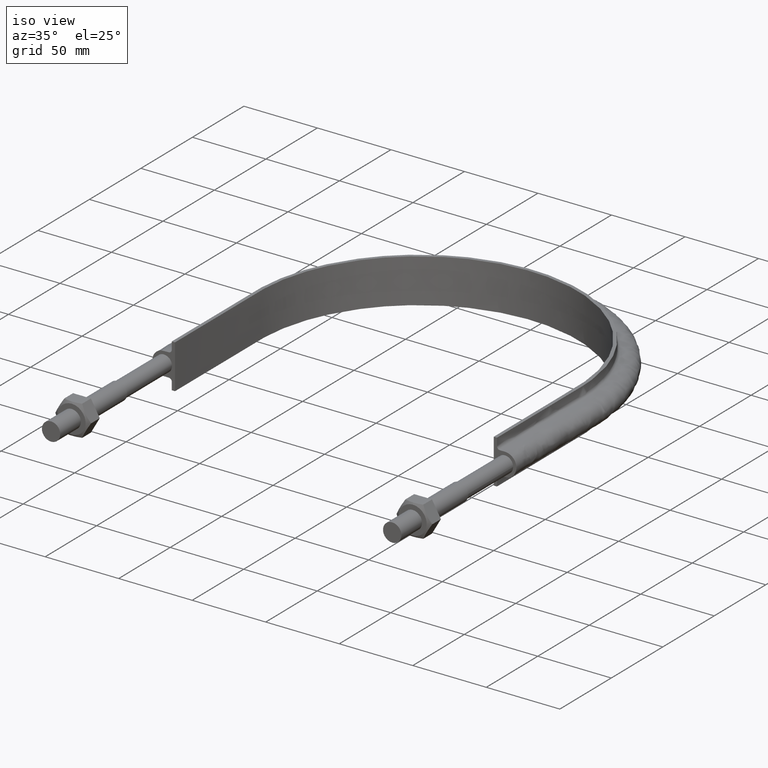
[diagram: clean part render]
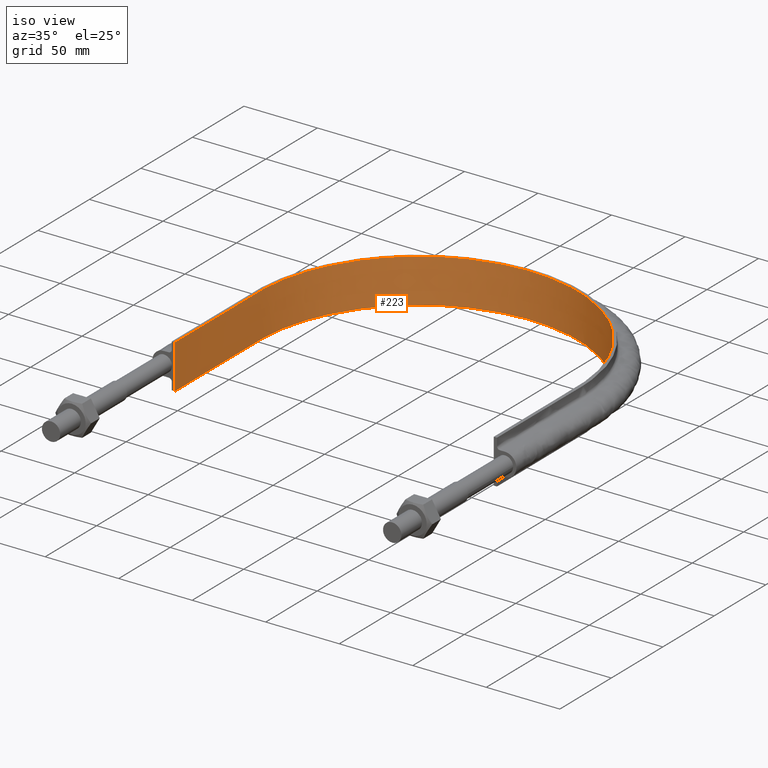
[diagram: same view with one face highlighted and labeled with its STEP entity id]
A machine part, iso view. The second image highlights one B-rep face of the part: STEP entity #223.
In plain terms, the highlighted face is a SurfaceOfExtrusion surface.
Its self-contained STEP definition (entity closure, byte-faithful):
#223 = ADVANCED_FACE( '', ( #270 ), #271, .T. );
#270 = FACE_OUTER_BOUND( '', #898, .T. );
#271 = SURFACE_OF_LINEAR_EXTRUSION( '', #899, #900 );
#898 = EDGE_LOOP( '', ( #1390, #1391, #1392, #1393 ) );
#899 = B_SPLINE_CURVE_WITH_KNOTS( '', 3, ( #1394, #1395, #1396, #1397, #1398, #1399, #1400, #1401, #1402, #1403, #1404, #1405, #1406, #1407, #1408, #1409, #1410 ), .UNSPECIFIED., .F., .F., ( 4, 3, 1, 1, 1, 1, 1, 1, 1, 3, 4 ), ( -10.0000000000000, -9.00000000000000, -8.00000000000000, -7.00000000000000, -6.00000000000000, -5.00000000000000, -4.00000000000000, -3.00000000000000, -2.00000000000000, -1.00000000000000, 0.000000000000000 ), .UNSPECIFIED. );
#900 = VECTOR( '', #1411, 1000.00000000000 );
#1390 = ORIENTED_EDGE( '', *, *, #1665, .F. );
#1391 = ORIENTED_EDGE( '', *, *, #1653, .F. );
#1392 = ORIENTED_EDGE( '', *, *, #1666, .T. );
#1393 = ORIENTED_EDGE( '', *, *, #1661, .T. );
#1394 = CARTESIAN_POINT( '', ( -108.400000000000, 109.500000000000, -338.759662970140 ) );
#1395 = CARTESIAN_POINT( '', ( -108.400000000000, 136.866666666667, -338.759662970140 ) );
#1396 = CARTESIAN_POINT( '', ( -108.400000000000, 164.233333333333, -338.759662970140 ) );
#1397 = CARTESIAN_POINT( '', ( -108.400000000000, 191.600000000000, -338.759662970140 ) );
#1398 = CARTESIAN_POINT( '', ( -108.400000000000, 205.774498518656, -338.759662970140 ) );
#1399 = CARTESIAN_POINT( '', ( -102.755814879494, 234.168943035043, -338.759662970140 ) );
#1400 = CARTESIAN_POINT( '', ( -78.6458958671129, 270.244256009620, -338.759662970140 ) );
#1401 = CARTESIAN_POINT( '', ( -42.5628521357854, 294.356283410206, -338.759662970140 ) );
#1402 = CARTESIAN_POINT( '', ( 7.87171205978664E-014, 302.821858294897, -338.759662970140 ) );
#1403 = CARTESIAN_POINT( '', ( 42.5628521357854, 294.356283410206, -338.759662970140 ) );
#1404 = CARTESIAN_POINT( '', ( 78.6458958671129, 270.244256009621, -338.759662970140 ) );
#1405 = CARTESIAN_POINT( '', ( 102.755814879494, 234.168943035043, -338.759662970140 ) );
#1406 = CARTESIAN_POINT( '', ( 108.400000000000, 205.774498518656, -338.759662970140 ) );
#1407 = CARTESIAN_POINT( '', ( 108.400000000000, 191.600000000000, -338.759662970140 ) );
#1408 = CARTESIAN_POINT( '', ( 108.400000000000, 164.233333333333, -338.759662970140 ) );
#1409 = CARTESIAN_POINT( '', ( 108.400000000000, 136.866666666667, -338.759662970140 ) );
#1410 = CARTESIAN_POINT( '', ( 108.400000000000, 109.500000000000, -338.759662970140 ) );
#1411 = DIRECTION( '', ( 0.000000000000000, 0.000000000000000, 1.00000000000000 ) );
#1653 = EDGE_CURVE( '', #1735, #1736, #1737, .T. );
#1661 = EDGE_CURVE( '', #1750, #1751, #1752, .T. );
#1665 = EDGE_CURVE( '', #1736, #1751, #1757, .T. );
#1666 = EDGE_CURVE( '', #1735, #1750, #1758, .T. );
#1735 = VERTEX_POINT( '', #1883 );
#1736 = VERTEX_POINT( '', #1884 );
#1737 = LINE( '', #1885, #1886 );
#1750 = VERTEX_POINT( '', #2003 );
#1751 = VERTEX_POINT( '', #2004 );
#1752 = LINE( '', #2005, #2006 );
#1757 = B_SPLINE_CURVE_WITH_KNOTS( '', 3, ( #2023, #2024, #2025, #2026, #2027, #2028, #2029, #2030, #2031, #2032, #2033, #2034, #2035, #2036, #2037, #2038, #2039 ), .UNSPECIFIED., .F., .F., ( 4, 3, 1, 1, 1, 1, 1, 1, 1, 3, 4 ), ( -10.0000000000000, -9.00000000000000, -8.00000000000000, -7.00000000000000, -6.00000000000000, -5.00000000000000, -4.00000000000000, -3.00000000000000, -2.00000000000000, -1.00000000000000, 0.000000000000000 ), .UNSPECIFIED. );
#1758 = B_SPLINE_CURVE_WITH_KNOTS( '', 3, ( #2040, #2041, #2042, #2043, #2044, #2045, #2046, #2047, #2048, #2049, #2050, #2051, #2052, #2053, #2054, #2055, #2056 ), .UNSPECIFIED., .F., .F., ( 4, 3, 1, 1, 1, 1, 1, 1, 1, 3, 4 ), ( -10.0000000000000, -9.00000000000000, -8.00000000000000, -7.00000000000000, -6.00000000000000, -5.00000000000000, -4.00000000000000, -3.00000000000000, -2.00000000000000, -1.00000000000000, 0.000000000000000 ), .UNSPECIFIED. );
#1883 = CARTESIAN_POINT( '', ( -108.400000000000, 109.500000000000, -15.0000000000000 ) );
#1884 = CARTESIAN_POINT( '', ( -108.400000000000, 109.500000000000, 15.0000000000000 ) );
#1885 = CARTESIAN_POINT( '', ( -108.400000000000, 109.500000000000, -338.759662970140 ) );
#1886 = VECTOR( '', #2385, 1000.00000000000 );
#2003 = CARTESIAN_POINT( '', ( 108.400000000000, 109.500000000000, -15.0000000000000 ) );
#2004 = CARTESIAN_POINT( '', ( 108.400000000000, 109.500000000000, 15.0000000000000 ) );
#2005 = CARTESIAN_POINT( '', ( 108.400000000000, 109.500000000000, -338.759662970140 ) );
#2006 = VECTOR( '', #2388, 1000.00000000000 );
#2023 = CARTESIAN_POINT( '', ( -108.400000000000, 109.500000000000, 15.0000000000001 ) );
#2024 = CARTESIAN_POINT( '', ( -108.400000000000, 136.866666666667, 15.0000000000001 ) );
#2025 = CARTESIAN_POINT( '', ( -108.400000000000, 164.233333333333, 15.0000000000001 ) );
#2026 = CARTESIAN_POINT( '', ( -108.400000000000, 191.600000000000, 15.0000000000001 ) );
#2027 = CARTESIAN_POINT( '', ( -108.400000000000, 205.774498518656, 15.0000000000001 ) );
#2028 = CARTESIAN_POINT( '', ( -102.755814879494, 234.168943035043, 15.0000000000001 ) );
#2029 = CARTESIAN_POINT( '', ( -78.6458958671129, 270.244256009620, 15.0000000000001 ) );
#2030 = CARTESIAN_POINT( '', ( -42.5628521357854, 294.356283410206, 15.0000000000001 ) );
#2031 = CARTESIAN_POINT( '', ( 7.87171205978664E-014, 302.821858294897, 15.0000000000001 ) );
#2032 = CARTESIAN_POINT( '', ( 42.5628521357854, 294.356283410206, 15.0000000000001 ) );
#2033 = CARTESIAN_POINT( '', ( 78.6458958671129, 270.244256009621, 15.0000000000001 ) );
#2034 = CARTESIAN_POINT( '', ( 102.755814879494, 234.168943035043, 15.0000000000001 ) );
#2035 = CARTESIAN_POINT( '', ( 108.400000000000, 205.774498518656, 15.0000000000001 ) );
#2036 = CARTESIAN_POINT( '', ( 108.400000000000, 191.600000000000, 15.0000000000001 ) );
#2037 = CARTESIAN_POINT( '', ( 108.400000000000, 164.233333333333, 15.0000000000001 ) );
#2038 = CARTESIAN_POINT( '', ( 108.400000000000, 136.866666666667, 15.0000000000001 ) );
#2039 = CARTESIAN_POINT( '', ( 108.400000000000, 109.500000000000, 15.0000000000001 ) );
#2040 = CARTESIAN_POINT( '', ( -108.400000000000, 109.500000000000, -15.0000000000000 ) );
#2041 = CARTESIAN_POINT( '', ( -108.400000000000, 136.866666666667, -15.0000000000000 ) );
#2042 = CARTESIAN_POINT( '', ( -108.400000000000, 164.233333333333, -15.0000000000000 ) );
#2043 = CARTESIAN_POINT( '', ( -108.400000000000, 191.600000000000, -15.0000000000000 ) );
#2044 = CARTESIAN_POINT( '', ( -108.400000000000, 205.774498518656, -15.0000000000000 ) );
#2045 = CARTESIAN_POINT( '', ( -102.755814879494, 234.168943035043, -15.0000000000000 ) );
#2046 = CARTESIAN_POINT( '', ( -78.6458958671129, 270.244256009620, -15.0000000000000 ) );
#2047 = CARTESIAN_POINT( '', ( -42.5628521357854, 294.356283410206, -15.0000000000000 ) );
#2048 = CARTESIAN_POINT( '', ( 7.87171205978664E-014, 302.821858294897, -15.0000000000000 ) );
#2049 = CARTESIAN_POINT( '', ( 42.5628521357854, 294.356283410206, -15.0000000000000 ) );
#2050 = CARTESIAN_POINT( '', ( 78.6458958671129, 270.244256009621, -15.0000000000000 ) );
#2051 = CARTESIAN_POINT( '', ( 102.755814879494, 234.168943035043, -15.0000000000000 ) );
#2052 = CARTESIAN_POINT( '', ( 108.400000000000, 205.774498518656, -15.0000000000000 ) );
#2053 = CARTESIAN_POINT( '', ( 108.400000000000, 191.600000000000, -15.0000000000000 ) );
#2054 = CARTESIAN_POINT( '', ( 108.400000000000, 164.233333333333, -15.0000000000000 ) );
#2055 = CARTESIAN_POINT( '', ( 108.400000000000, 136.866666666667, -15.0000000000000 ) );
#2056 = CARTESIAN_POINT( '', ( 108.400000000000, 109.500000000000, -15.0000000000000 ) );
#2385 = DIRECTION( '', ( 0.000000000000000, 0.000000000000000, 1.00000000000000 ) );
#2388 = DIRECTION( '', ( 0.000000000000000, 0.000000000000000, 1.00000000000000 ) );